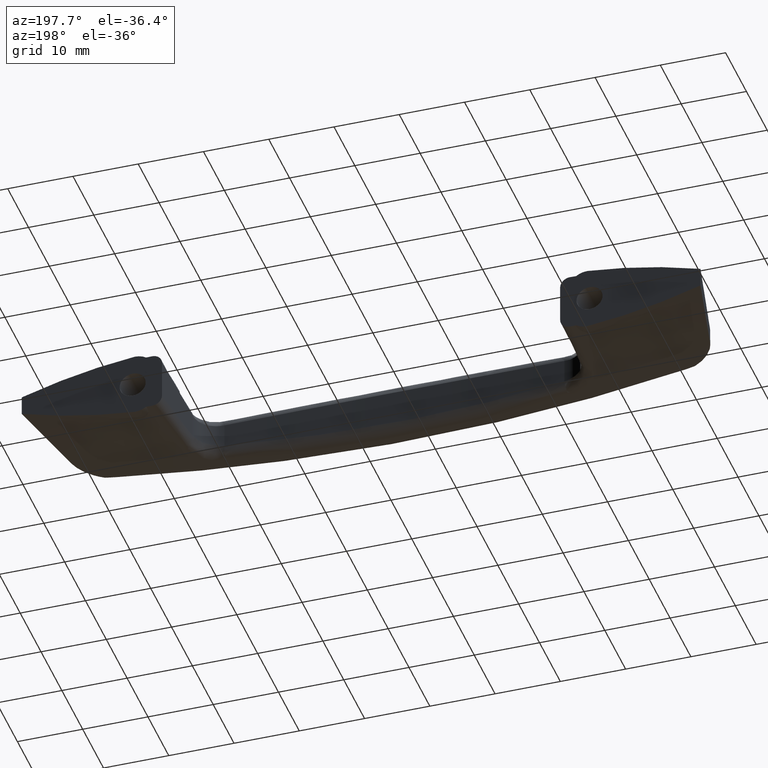
[diagram: clean part render]
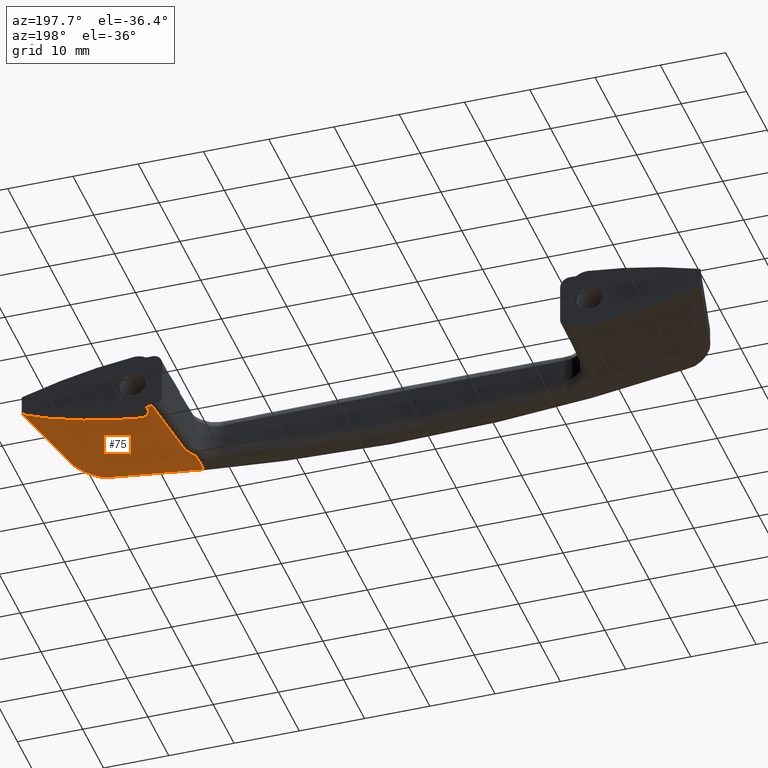
[diagram: same view with one face highlighted and labeled with its STEP entity id]
A machine part, auxiliary view. The second image highlights one B-rep face of the part: STEP entity #75.
In plain terms, the highlighted face is a freeform B-spline surface patch.
Its self-contained STEP definition (entity closure, byte-faithful):
#75=ADVANCED_FACE('',(#437),#436,.F.);
#436=( BOUNDED_SURFACE() B_SPLINE_SURFACE( 3,3,((#1904,#1905,#1906,#1907,#1908),(#1909,#1910,#1911,#1912,#1913),(#1914,#1915,#1916,#1917,#1918),(#1919,#1920,#1921,#1922,#1923)), .UNSPECIFIED.,.F.,.F.,.F.) B_SPLINE_SURFACE_WITH_KNOTS((4,4),(4,1,4),(0.00000000000E+00,2.18181993172E+01),(0.00000000000E+00,1.75008341648E+01,1.99571666957E+01), .UNSPECIFIED. ) GEOMETRIC_REPRESENTATION_ITEM() RATIONAL_B_SPLINE_SURFACE(((1.00000000000E+00,1.00000000000E+00,1.00000000000E+00,1.00000000000E+00,1.00000000000E+00),(1.00000000000E+00,1.00000000000E+00,1.00000000000E+00,1.00000000000E+00,1.00000000000E+00),(1.00000000000E+00,1.00000000000E+00,1.00000000000E+00,1.00000000000E+00,1.00000000000E+00),(1.00000000000E+00,1.00000000000E+00,1.00000000000E+00,1.00000000000E+00,1.00000000000E+00))) REPRESENTATION_ITEM('') SURFACE() );
#437=FACE_OUTER_BOUND('',#1924,.T.);
#1904=CARTESIAN_POINT('',(8.71246836077E+01,9.64704935650E-02,-1.47346183921E+00));
#1905=CARTESIAN_POINT('',(8.58942736324E+01,-5.60467069131E+00,-1.35470868256E+00));
#1906=CARTESIAN_POINT('',(8.44911701547E+01,-1.21060419997E+01,-1.21931878052E+00));
#1907=CARTESIAN_POINT('',(8.30878863146E+01,-1.85982677269E+01,-1.07772193069E+00));
#1908=CARTESIAN_POINT('',(8.29151681857E+01,-1.93972491206E+01,-1.06023769401E+00));
#1909=CARTESIAN_POINT('',(8.01293110595E+01,9.64704935650E-02,-3.46278577935E+00));
#1910=CARTESIAN_POINT('',(7.91659821824E+01,-5.60467069131E+00,-2.83066458711E+00));
#1911=CARTESIAN_POINT('',(7.80667210307E+01,-1.21060419997E+01,-2.10753036067E+00));
#1912=CARTESIAN_POINT('',(7.71130316768E+01,-1.85982677269E+01,-1.84509476164E+00));
#1913=CARTESIAN_POINT('',(7.69969756496E+01,-1.93972491206E+01,-1.81698511960E+00));
#1914=CARTESIAN_POINT('',(7.28644316249E+01,9.64704935650E-02,-4.48722514796E+00));
#1915=CARTESIAN_POINT('',(7.22807276297E+01,-5.60467069131E+00,-3.70511892999E+00));
#1916=CARTESIAN_POINT('',(7.16142254378E+01,-1.21060419997E+01,-2.81043705535E+00));
#1917=CARTESIAN_POINT('',(7.11230967554E+01,-1.85982677269E+01,-2.47927635363E+00));
#1918=CARTESIAN_POINT('',(7.10642439060E+01,-1.93972491206E+01,-2.44364339057E+00));
#1919=CARTESIAN_POINT('',(6.55920914271E+01,9.64704935650E-02,-4.50988577000E+00));
#1920=CARTESIAN_POINT('',(6.53851464838E+01,-5.60467069131E+00,-3.95755684945E+00));
#1921=CARTESIAN_POINT('',(6.51481116878E+01,-1.21060419997E+01,-3.32628763297E+00));
#1922=CARTESIAN_POINT('',(6.51209765236E+01,-1.85982677269E+01,-2.98011104326E+00));
#1923=CARTESIAN_POINT('',(6.51195461851E+01,-1.93972491206E+01,-2.94009704803E+00));
#1924=EDGE_LOOP('',(#2242,#2243,#2244,#2245,#2246,#2247,#2248,#2249,#2250,#2251,#2252,#2253,#2254));
#2242=ORIENTED_EDGE('',*,*,#2439,.T.);
#2243=ORIENTED_EDGE('',*,*,#2436,.T.);
#2244=ORIENTED_EDGE('',*,*,#2471,.F.);
#2245=ORIENTED_EDGE('',*,*,#2375,.F.);
#2246=ORIENTED_EDGE('',*,*,#2373,.F.);
#2247=ORIENTED_EDGE('',*,*,#2372,.F.);
#2248=ORIENTED_EDGE('',*,*,#2371,.F.);
#2249=ORIENTED_EDGE('',*,*,#2472,.F.);
#2250=ORIENTED_EDGE('',*,*,#2456,.T.);
#2251=ORIENTED_EDGE('',*,*,#2462,.T.);
#2252=ORIENTED_EDGE('',*,*,#2359,.F.);
#2253=ORIENTED_EDGE('',*,*,#2466,.F.);
#2254=ORIENTED_EDGE('',*,*,#2465,.F.);
#2359=EDGE_CURVE('',#2534,#2541,#2542,.T.);
#2371=EDGE_CURVE('',#2616,#2623,#2624,.T.);
#2372=EDGE_CURVE('',#2623,#2630,#2631,.T.);
#2373=EDGE_CURVE('',#2630,#2637,#2638,.T.);
#2375=EDGE_CURVE('',#2637,#2650,#2651,.T.);
#2436=EDGE_CURVE('',#3067,#3060,#3068,.T.);
#2439=EDGE_CURVE('',#3087,#3067,#3088,.T.);
#2456=EDGE_CURVE('',#3202,#3195,#3203,.T.);
#2462=EDGE_CURVE('',#3195,#2541,#3239,.T.);
#2465=EDGE_CURVE('',#3087,#3257,#3258,.T.);
#2466=EDGE_CURVE('',#3257,#2534,#3264,.T.);
#2471=EDGE_CURVE('',#2650,#3060,#3295,.T.);
#2472=EDGE_CURVE('',#3202,#2616,#3301,.T.);
#2534=VERTEX_POINT('',#3497);
#2541=VERTEX_POINT('',#3512);
#2542=(BOUNDED_CURVE() B_SPLINE_CURVE(3,(#3513,#3514,#3515,#3516,#3517,#3518),.UNSPECIFIED.,.F.,.F.) B_SPLINE_CURVE_WITH_KNOTS((4,2,4),(0.00000000000E+00,5.00000000000E-01,1.00000000000E+00),.UNSPECIFIED.) CURVE() GEOMETRIC_REPRESENTATION_ITEM() RATIONAL_B_SPLINE_CURVE((1.00000000000E+00,1.00000000000E+00,1.00000000000E+00,1.00000000000E+00,1.00000000000E+00,1.00000000000E+00)) REPRESENTATION_ITEM('') );
#2616=VERTEX_POINT('',#3649);
#2623=VERTEX_POINT('',#3654);
#2624=CIRCLE('',#3658,8.18314614264E-01);
#2630=VERTEX_POINT('',#3659);
#2631=CIRCLE('',#3663,1.79989205037E+02);
#2637=VERTEX_POINT('',#3664);
#2638=(BOUNDED_CURVE() B_SPLINE_CURVE(3,(#3665,#3666,#3667,#3668,#3669,#3670,#3671,#3672,#3673,#3674,#3675,#3676,#3677,#3678,#3679,#3680,#3681,#3682,#3683,#3684,#3685,#3686,#3687,#3688,#3689,#3690,#3691,#3692),.UNSPECIFIED.,.F.,.F.) B_SPLINE_CURVE_WITH_KNOTS((4,2,2,2,2,2,2,2,2,2,2,2,2,4),(0.00000000000E+00,7.81250000000E-03,1.56250000000E-02,3.12500000000E-02,6.25000000000E-02,9.37500000000E-02,1.25000000000E-01,1.87500000000E-01,2.50000000000E-01,3.75000000000E-01,4.37500000000E-01,5.00000000000E-01,7.50000000000E-01,1.00000000000E+00),.UNSPECIFIED.) CURVE() GEOMETRIC_REPRESENTATION_ITEM() RATIONAL_B_SPLINE_CURVE((1.00000000000E+00,1.00000000000E+00,1.00000000000E+00,1.00000000000E+00,1.00000000000E+00,1.00000000000E+00,1.00000000000E+00,1.00000000000E+00,1.00000000000E+00,1.00000000000E+00,1.00000000000E+00,1.00000000000E+00,1.00000000000E+00,1.00000000000E+00,1.00000000000E+00,1.00000000000E+00,1.00000000000E+00,1.00000000000E+00,1.00000000000E+00,1.00000000000E+00,1.00000000000E+00,1.00000000000E+00,1.00000000000E+00,1.00000000000E+00,1.00000000000E+00,1.00000000000E+00,1.00000000000E+00,1.00000000000E+00)) REPRESENTATION_ITEM('') );
#2650=VERTEX_POINT('',#3697);
#2651=(BOUNDED_CURVE() B_SPLINE_CURVE(3,(#3698,#3699,#3700,#3701,#3702,#3703,#3704,#3705,#3706,#3707,#3708,#3709,#3710,#3711,#3712,#3713,#3714,#3715,#3716,#3717,#3718,#3719,#3720,#3721,#3722,#3723,#3724,#3725,#3726,#3727),.UNSPECIFIED.,.F.,.F.) B_SPLINE_CURVE_WITH_KNOTS((4,2,2,2,2,2,2,2,2,2,2,2,2,2,4),(0.00000000000E+00,1.25000000000E-01,1.56250000000E-01,1.87500000000E-01,2.50000000000E-01,3.12500000000E-01,3.43750000000E-01,3.75000000000E-01,5.00000000000E-01,5.62500000000E-01,6.25000000000E-01,7.50000000000E-01,8.12500000000E-01,8.75000000000E-01,1.00000000000E+00),.UNSPECIFIED.) CURVE() GEOMETRIC_REPRESENTATION_ITEM() RATIONAL_B_SPLINE_CURVE((1.00000000000E+00,1.00000000000E+00,1.00000000000E+00,1.00000000000E+00,1.00000000000E+00,1.00000000000E+00,1.00000000000E+00,1.00000000000E+00,1.00000000000E+00,1.00000000000E+00,1.00000000000E+00,1.00000000000E+00,1.00000000000E+00,1.00000000000E+00,1.00000000000E+00,1.00000000000E+00,1.00000000000E+00,1.00000000000E+00,1.00000000000E+00,1.00000000000E+00,1.00000000000E+00,1.00000000000E+00,1.00000000000E+00,1.00000000000E+00,1.00000000000E+00,1.00000000000E+00,1.00000000000E+00,1.00000000000E+00,1.00000000000E+00,1.00000000000E+00)) REPRESENTATION_ITEM('') );
#3060=VERTEX_POINT('',#4455);
#3067=VERTEX_POINT('',#4465);
#3068=(BOUNDED_CURVE() B_SPLINE_CURVE(3,(#4466,#4467,#4468,#4469,#4470,#4471,#4472,#4473),.UNSPECIFIED.,.F.,.F.) B_SPLINE_CURVE_WITH_KNOTS((4,1,1,1,1,4),(0.00000000000E+00,1.36573409974E-01,3.04815800430E-01,5.04789931598E-01,7.36527382470E-01,1.00000000000E+00),.UNSPECIFIED.) CURVE() GEOMETRIC_REPRESENTATION_ITEM() RATIONAL_B_SPLINE_CURVE((1.00000000000E+00,1.00000000000E+00,1.00000000000E+00,1.00000000000E+00,1.00000000000E+00,1.00000000000E+00,1.00000000000E+00,1.00000000000E+00)) REPRESENTATION_ITEM('') );
#3087=VERTEX_POINT('',#4494);
#3088=(BOUNDED_CURVE() B_SPLINE_CURVE(3,(#4495,#4496,#4497,#4498,#4499,#4500,#4501,#4502,#4503,#4504,#4505,#4506,#4507,#4508),.UNSPECIFIED.,.F.,.F.) B_SPLINE_CURVE_WITH_KNOTS((4,1,1,1,1,1,1,1,1,1,1,4),(0.00000000000E+00,7.12102664259E-02,1.42320651129E-01,2.13455942477E-01,2.84741361103E-01,3.56302031783E-01,4.28262462279E-01,5.00746042472E-01,6.25778628671E-01,7.50223970542E-01,8.74738440728E-01,9.99998987838E-01),.UNSPECIFIED.) CURVE() GEOMETRIC_REPRESENTATION_ITEM() RATIONAL_B_SPLINE_CURVE((1.00000000000E+00,1.00000000000E+00,1.00000000000E+00,1.00000000000E+00,1.00000000000E+00,1.00000000000E+00,1.00000000000E+00,1.00000000000E+00,1.00000000000E+00,1.00000000000E+00,1.00000000000E+00,1.00000000000E+00,1.00000000000E+00,1.00000000000E+00)) REPRESENTATION_ITEM('') );
#3195=VERTEX_POINT('',#4623);
#3202=VERTEX_POINT('',#4627);
#3203=(BOUNDED_CURVE() B_SPLINE_CURVE(3,(#4628,#4629,#4630,#4631),.UNSPECIFIED.,.F.,.F.) B_SPLINE_CURVE_WITH_KNOTS((4,4),(1.24632142714E-01,7.38916784463E-01),.UNSPECIFIED.) CURVE() GEOMETRIC_REPRESENTATION_ITEM() RATIONAL_B_SPLINE_CURVE((1.00000000000E+00,1.00000000000E+00,1.00000000000E+00,1.00000000000E+00)) REPRESENTATION_ITEM('') );
#3239=(BOUNDED_CURVE() B_SPLINE_CURVE(3,(#4693,#4694,#4695,#4696,#4697,#4698,#4699,#4700,#4701,#4702,#4703,#4704,#4705,#4706,#4707,#4708,#4709,#4710,#4711,#4712,#4713,#4714,#4715,#4716),.UNSPECIFIED.,.F.,.F.) B_SPLINE_CURVE_WITH_KNOTS((4,2,2,2,2,2,2,2,2,2,2,4),(0.00000000000E+00,1.25000000000E-01,2.50000000000E-01,3.12500000000E-01,3.75000000000E-01,5.00000000000E-01,6.25000000000E-01,6.87500000000E-01,7.18750000000E-01,7.50000000000E-01,8.75000000000E-01,1.00000000000E+00),.UNSPECIFIED.) CURVE() GEOMETRIC_REPRESENTATION_ITEM() RATIONAL_B_SPLINE_CURVE((1.00000000000E+00,1.00000000000E+00,1.00000000000E+00,1.00000000000E+00,1.00000000000E+00,1.00000000000E+00,1.00000000000E+00,1.00000000000E+00,1.00000000000E+00,1.00000000000E+00,1.00000000000E+00,1.00000000000E+00,1.00000000000E+00,1.00000000000E+00,1.00000000000E+00,1.00000000000E+00,1.00000000000E+00,1.00000000000E+00,1.00000000000E+00,1.00000000000E+00,1.00000000000E+00,1.00000000000E+00,1.00000000000E+00,1.00000000000E+00)) REPRESENTATION_ITEM('') );
#3257=VERTEX_POINT('',#4759);
#3258=(BOUNDED_CURVE() B_SPLINE_CURVE(3,(#4760,#4761,#4762,#4763),.UNSPECIFIED.,.F.,.F.) B_SPLINE_CURVE_WITH_KNOTS((4,4),(6.69408487735E-01,7.38916784463E-01),.UNSPECIFIED.) CURVE() GEOMETRIC_REPRESENTATION_ITEM() RATIONAL_B_SPLINE_CURVE((1.00000000000E+00,1.00000000000E+00,1.00000000000E+00,1.00000000000E+00)) REPRESENTATION_ITEM('') );
#3264=(BOUNDED_CURVE() B_SPLINE_CURVE(3,(#4764,#4765,#4766,#4767),.UNSPECIFIED.,.F.,.F.) B_SPLINE_CURVE_WITH_KNOTS((4,4),(7.38916784463E-01,8.38186744492E-01),.UNSPECIFIED.) CURVE() GEOMETRIC_REPRESENTATION_ITEM() RATIONAL_B_SPLINE_CURVE((1.00000000000E+00,1.00000000000E+00,1.00000000000E+00,1.00000000000E+00)) REPRESENTATION_ITEM('') );
#3295=CIRCLE('',#4788,8.00697039431E+01);
#3301=CIRCLE('',#4792,8.03413378876E+01);
#3497=CARTESIAN_POINT('',(6.52081757174E+01,-1.92816720495E+01,-2.93850225284E+00));
#3512=CARTESIAN_POINT('',(8.01970423412E+01,-1.87281347887E+01,-1.43240979430E+00));
#3513=CARTESIAN_POINT('',(6.52081757174E+01,-1.92816720495E+01,-2.93850225284E+00));
#3514=CARTESIAN_POINT('',(6.77114812986E+01,-1.92155203213E+01,-2.73228056424E+00));
#3515=CARTESIAN_POINT('',(7.02125297102E+01,-1.91361414425E+01,-2.50373694711E+00));
#3516=CARTESIAN_POINT('',(7.52091687193E+01,-1.89512914685E+01,-2.00188264080E+00));
#3517=CARTESIAN_POINT('',(7.77047972339E+01,-1.88457675945E+01,-1.72860019424E+00));
#3518=CARTESIAN_POINT('',(8.01970423412E+01,-1.87281347887E+01,-1.43240979430E+00));
#3649=CARTESIAN_POINT('',(8.65526045174E+01,-1.99051200000E-16,-1.62542994728E+00));
#3654=CARTESIAN_POINT('',(8.65773206453E+01,-1.17217855448E-02,-1.61760096421E+00));
#3655=CARTESIAN_POINT('',(8.62217508498E+01,-7.48068999134E-01,-1.64925075918E+00));
#3656=DIRECTION('',(2.63561663199E-01,-8.59723040487E-02,-9.60803836706E-01));
#3657=DIRECTION('',(-4.04311082615E-01,-9.14158180845E-01,-2.91096009850E-02));
#3658=AXIS2_PLACEMENT_3D('',#3655,#3656,#3657);
#3659=CARTESIAN_POINT('',(8.65773206453E+01,-2.63105502050E-01,-1.59610330946E+00));
#3660=CARTESIAN_POINT('',(-1.17991677919E+01,-1.29801715976E+01,-1.51784174349E+02));
#3661=DIRECTION('',(8.37414098071E-01,-4.65705455353E-02,-5.44581318667E-01));
#3662=DIRECTION('',(-5.46568825708E-01,-7.20512644599E-02,-8.34308776206E-01));
#3663=AXIS2_PLACEMENT_3D('',#3660,#3661,#3662);
#3664=CARTESIAN_POINT('',(6.96578169925E+01,-2.94902598345E+00,-4.03772774715E+00));
#3665=CARTESIAN_POINT('',(8.65773206453E+01,-2.63105502050E-01,-1.59610330946E+00));
#3666=CARTESIAN_POINT('',(8.65378593565E+01,-2.85625357590E-01,-1.60499777118E+00));
#3667=CARTESIAN_POINT('',(8.64973662478E+01,-3.04324742177E-01,-1.61444998913E+00));
#3668=CARTESIAN_POINT('',(8.64156470156E+01,-3.39060849721E-01,-1.63368426690E+00));
#3669=CARTESIAN_POINT('',(8.63743675321E+01,-3.54897869199E-01,-1.64349792061E+00));
#3670=CARTESIAN_POINT('',(8.62498404320E+01,-3.99950841152E-01,-1.67319271636E+00));
#3671=CARTESIAN_POINT('',(8.61659125530E+01,-4.26740023014E-01,-1.69332282318E+00));
#3672=CARTESIAN_POINT('',(8.59128847268E+01,-5.02918391351E-01,-1.75384665053E+00));
#3673=CARTESIAN_POINT('',(8.57425182091E+01,-5.48034399432E-01,-1.79438743605E+00));
#3674=CARTESIAN_POINT('',(8.54003935402E+01,-6.34273306591E-01,-1.87472447584E+00));
#3675=CARTESIAN_POINT('',(8.52285044044E+01,-6.75128660891E-01,-1.91457737439E+00));
#3676=CARTESIAN_POINT('',(8.48840849851E+01,-7.54337143040E-01,-1.99324118617E+00));
#3677=CARTESIAN_POINT('',(8.47115371059E+01,-7.92646526676E-01,-2.03206113249E+00));
#3678=CARTESIAN_POINT('',(8.41931082924E+01,-9.05053885656E-01,-2.14684639681E+00));
#3679=CARTESIAN_POINT('',(8.38464509365E+01,-9.76684217399E-01,-2.22113075608E+00));
#3680=CARTESIAN_POINT('',(8.31515334660E+01,-1.11603148597E+00,-2.36504841159E+00));
#3681=CARTESIAN_POINT('',(8.28032608994E+01,-1.18367240080E+00,-2.43469121206E+00));
#3682=CARTESIAN_POINT('',(8.17562594201E+01,-1.38179992474E+00,-2.63674539976E+00));
#3683=CARTESIAN_POINT('',(8.10553547757E+01,-1.50753555479E+00,-2.76228132469E+00));
#3684=CARTESIAN_POINT('',(7.99999666427E+01,-1.68759343364E+00,-2.93758934488E+00));
#3685=CARTESIAN_POINT('',(7.96474937015E+01,-1.74615889055E+00,-2.99386204801E+00));
#3686=CARTESIAN_POINT('',(7.89412121497E+01,-1.86034189562E+00,-3.10221797029E+00));
#3687=CARTESIAN_POINT('',(7.85873173252E+01,-1.91597088799E+00,-3.15431294762E+00));
#3688=CARTESIAN_POINT('',(7.68161239304E+01,-2.18629240667E+00,-3.40442375961E+00));
#3689=CARTESIAN_POINT('',(7.53929982973E+01,-2.37758897377E+00,-3.57163284801E+00));
#3690=CARTESIAN_POINT('',(7.25345516928E+01,-2.70515904591E+00,-3.84772097484E+00));
#3691=CARTESIAN_POINT('',(7.10992237723E+01,-2.84134937172E+00,-3.95662728698E+00));
#3692=CARTESIAN_POINT('',(6.96578169925E+01,-2.94902598345E+00,-4.03772774715E+00));
#3697=CARTESIAN_POINT('',(6.79374437056E+01,0.00000000000E+00,-4.45736725161E+00));
#3698=CARTESIAN_POINT('',(6.96578169925E+01,-2.94902598345E+00,-4.03772774715E+00));
#3699=CARTESIAN_POINT('',(6.94979929841E+01,-2.93207442994E+00,-4.05007962103E+00));
#3700=CARTESIAN_POINT('',(6.93458544616E+01,-2.89110056948E+00,-4.06428808862E+00));
#3701=CARTESIAN_POINT('',(6.91641548340E+01,-2.81337975716E+00,-4.08403784098E+00));
#3702=CARTESIAN_POINT('',(6.91282462056E+01,-2.79648672590E+00,-4.08808949441E+00));
#3703=CARTESIAN_POINT('',(6.90572910615E+01,-2.76000444782E+00,-4.09639614344E+00));
#3704=CARTESIAN_POINT('',(6.90223319456E+01,-2.74044584377E+00,-4.10064229631E+00));
#3705=CARTESIAN_POINT('',(6.89203845327E+01,-2.67879765996E+00,-4.11347279263E+00));
#3706=CARTESIAN_POINT('',(6.88557470232E+01,-2.63346578316E+00,-4.12221407772E+00));
#3707=CARTESIAN_POINT('',(6.87325454741E+01,-2.53507743681E+00,-4.14004971027E+00));
#3708=CARTESIAN_POINT('',(6.86739849314E+01,-2.48201652281E+00,-4.14914427876E+00));
#3709=CARTESIAN_POINT('',(6.85904794032E+01,-2.39691363216E+00,-4.16305096599E+00));
#3710=CARTESIAN_POINT('',(6.85633229637E+01,-2.36756335656E+00,-4.16773993865E+00));
#3711=CARTESIAN_POINT('',(6.85110592985E+01,-2.30778803944E+00,-4.17709371060E+00));
#3712=CARTESIAN_POINT('',(6.84858713724E+01,-2.27728718992E+00,-4.18177130911E+00));
#3713=CARTESIAN_POINT('',(6.83643824534E+01,-2.12189261168E+00,-4.20516960788E+00));
#3714=CARTESIAN_POINT('',(6.82812764426E+01,-1.98842992399E+00,-4.22392069945E+00));
#3715=CARTESIAN_POINT('',(6.81748278864E+01,-1.77642984451E+00,-4.25222976072E+00));
#3716=CARTESIAN_POINT('',(6.81423154392E+01,-1.70347386706E+00,-4.26173378765E+00));
#3717=CARTESIAN_POINT('',(6.80841862377E+01,-1.55634408370E+00,-4.28049644050E+00));
#3718=CARTESIAN_POINT('',(6.80584244660E+01,-1.48194243038E+00,-4.28978719850E+00));
#3719=CARTESIAN_POINT('',(6.79902428449E+01,-1.25643549052E+00,-4.31744652581E+00));
#3720=CARTESIAN_POINT('',(6.79568404010E+01,-1.10305011566E+00,-4.33560476938E+00));
#3721=CARTESIAN_POINT('',(6.79234732309E+01,-8.68756477738E-01,-4.36258742030E+00));
#3722=CARTESIAN_POINT('',(6.79151498309E+01,-7.89719992070E-01,-4.37156414107E+00));
#3723=CARTESIAN_POINT('',(6.79042422549E+01,-6.31360708697E-01,-4.38932423367E+00));
#3724=CARTESIAN_POINT('',(6.79016536844E+01,-5.52257556436E-01,-4.39808379567E+00));
#3725=CARTESIAN_POINT('',(6.79023296933E+01,-3.15176425312E-01,-4.42403484095E+00));
#3726=CARTESIAN_POINT('',(6.79139371177E+01,-1.57424242600E-01,-4.44090385543E+00));
#3727=CARTESIAN_POINT('',(6.79374437056E+01,0.00000000000E+00,-4.45736725161E+00));
#4455=CARTESIAN_POINT('',(6.70461265372E+01,1.10435800000E-17,-4.48179204795E+00));
#4465=CARTESIAN_POINT('',(6.63254787873E+01,-1.24683387398E+01,-3.29373326936E+00));
#4466=CARTESIAN_POINT('',(6.63254787873E+01,-1.24683387398E+01,-3.29373326936E+00));
#4467=CARTESIAN_POINT('',(6.63583914444E+01,-1.18999588180E+01,-3.33920307416E+00));
#4468=CARTESIAN_POINT('',(6.64318486271E+01,-1.06314016307E+01,-3.44068633467E+00));
#4469=CARTESIAN_POINT('',(6.65501336973E+01,-8.53194908767E+00,-3.62718127585E+00));
#4470=CARTESIAN_POINT('',(6.66933167150E+01,-6.03823405273E+00,-3.86370154262E+00));
#4471=CARTESIAN_POINT('',(6.68620007606E+01,-3.15043663490E+00,-4.15401047896E+00));
#4472=CARTESIAN_POINT('',(6.69821839942E+01,-1.09407239937E+00,-4.36796123362E+00));
#4473=CARTESIAN_POINT('',(6.70461265372E+01,1.10435800000E-17,-4.48179204795E+00));
#4494=CARTESIAN_POINT('',(6.52403883870E+01,-1.54019056817E+01,-3.16067440891E+00));
#4495=CARTESIAN_POINT('',(6.52403883870E+01,-1.54019056817E+01,-3.16067440891E+00));
#4496=CARTESIAN_POINT('',(6.52852080793E+01,-1.53412689761E+01,-3.16115906401E+00));
#4497=CARTESIAN_POINT('',(6.53747845985E+01,-1.52200806160E+01,-3.16212769441E+00));
#4498=CARTESIAN_POINT('',(6.54992552819E+01,-1.50313515938E+01,-3.16509875246E+00));
#4499=CARTESIAN_POINT('',(6.56161985681E+01,-1.48378547319E+01,-3.16920573911E+00));
#4500=CARTESIAN_POINT('',(6.57248965790E+01,-1.46390707213E+01,-3.17457472077E+00));
#4501=CARTESIAN_POINT('',(6.58254980177E+01,-1.44351417229E+01,-3.18119480316E+00));
#4502=CARTESIAN_POINT('',(6.59179231605E+01,-1.42260276642E+01,-3.18908993211E+00));
#4503=CARTESIAN_POINT('',(6.60222079079E+01,-1.39606387572E+01,-3.20046512562E+00));
#4504=CARTESIAN_POINT('',(6.61290412604E+01,-1.36369686050E+01,-3.21647838220E+00));
#4505=CARTESIAN_POINT('',(6.62247040701E+01,-1.32530988091E+01,-3.23869668667E+00));
#4506=CARTESIAN_POINT('',(6.62936762247E+01,-1.28632064387E+01,-3.26416262782E+00));
#4507=CARTESIAN_POINT('',(6.63148568779E+01,-1.26002231531E+01,-3.28385677641E+00));
#4508=CARTESIAN_POINT('',(6.63254787873E+01,-1.24683387398E+01,-3.29373326936E+00));
#4623=CARTESIAN_POINT('',(8.39594099848E+01,-1.41344185006E+01,-1.18779309927E+00));
#4627=CARTESIAN_POINT('',(8.70000000056E+01,-9.23879100000E-10,-1.50072784168E+00));
#4628=CARTESIAN_POINT('',(8.70000000056E+01,-9.23879100000E-10,-1.50072784168E+00));
#4629=CARTESIAN_POINT('',(8.59861835156E+01,-4.71280457314E+00,-1.39631809893E+00));
#4630=CARTESIAN_POINT('',(8.49723670255E+01,-9.42560914536E+00,-1.29190835618E+00));
#4631=CARTESIAN_POINT('',(8.39594099848E+01,-1.41344185006E+01,-1.18779309927E+00));
#4693=CARTESIAN_POINT('',(8.39594099848E+01,-1.41344185006E+01,-1.18779309927E+00));
#4694=CARTESIAN_POINT('',(8.39047796257E+01,-1.43883723408E+01,-1.18217536554E+00));
#4695=CARTESIAN_POINT('',(8.38355350719E+01,-1.46364966034E+01,-1.17898496493E+00));
#4696=CARTESIAN_POINT('',(8.36689299174E+01,-1.51215306352E+01,-1.17689991164E+00));
#4697=CARTESIAN_POINT('',(8.35715657925E+01,-1.53584389958E+01,-1.17800692928E+00));
#4698=CARTESIAN_POINT('',(8.34043483420E+01,-1.57053575744E+01,-1.18270389234E+00));
#4699=CARTESIAN_POINT('',(8.33450715475E+01,-1.58195861416E+01,-1.18477786114E+00));
#4700=CARTESIAN_POINT('',(8.32193157907E+01,-1.60451708122E+01,-1.18993741128E+00));
#4701=CARTESIAN_POINT('',(8.31525906964E+01,-1.61568930688E+01,-1.19303648722E+00));
#4702=CARTESIAN_POINT('',(8.29436383054E+01,-1.64840793125E+01,-1.20374451127E+00));
#4703=CARTESIAN_POINT('',(8.27926153391E+01,-1.66919435426E+01,-1.21274719408E+00));
#4704=CARTESIAN_POINT('',(8.24678774528E+01,-1.70878133016E+01,-1.23429454170E+00));
#4705=CARTESIAN_POINT('',(8.22941607483E+01,-1.72758170873E+01,-1.24684252018E+00));
#4706=CARTESIAN_POINT('',(8.20163979687E+01,-1.75427822641E+01,-1.26832705281E+00));
#4707=CARTESIAN_POINT('',(8.19209383996E+01,-1.76292574633E+01,-1.27593356907E+00));
#4708=CARTESIAN_POINT('',(8.17733504152E+01,-1.77551212961E+01,-1.28802215581E+00));
#4709=CARTESIAN_POINT('',(8.17233467944E+01,-1.77964906472E+01,-1.29217122830E+00));
#4710=CARTESIAN_POINT('',(8.16224779616E+01,-1.78774342628E+01,-1.30064548215E+00));
#4711=CARTESIAN_POINT('',(8.15715619965E+01,-1.79170555308E+01,-1.30497466515E+00));
#4712=CARTESIAN_POINT('',(8.13146058052E+01,-1.81109648046E+01,-1.32707355508E+00));
#4713=CARTESIAN_POINT('',(8.11014619071E+01,-1.82527064342E+01,-1.34619785108E+00));
#4714=CARTESIAN_POINT('',(8.06603973494E+01,-1.85100978823E+01,-1.38722319525E+00));
#4715=CARTESIAN_POINT('',(8.04324762220E+01,-1.86257468630E+01,-1.40912440165E+00));
#4716=CARTESIAN_POINT('',(8.01970423412E+01,-1.87281347887E+01,-1.43240979430E+00));
#4759=CARTESIAN_POINT('',(6.52216629403E+01,-1.70000000000E+01,-3.06219219357E+00));
#4760=CARTESIAN_POINT('',(6.52403883870E+01,-1.54019056817E+01,-3.16067440891E+00));
#4761=CARTESIAN_POINT('',(6.52328261590E+01,-1.59346614691E+01,-3.12602357420E+00));
#4762=CARTESIAN_POINT('',(6.52265401705E+01,-1.64673615049E+01,-3.09313516826E+00));
#4763=CARTESIAN_POINT('',(6.52216629403E+01,-1.70000000000E+01,-3.06219219357E+00));
#4764=CARTESIAN_POINT('',(6.52216629403E+01,-1.70000000000E+01,-3.06219219357E+00));
#4765=CARTESIAN_POINT('',(6.52146579428E+01,-1.77606669486E+01,-3.01749683529E+00));
#4766=CARTESIAN_POINT('',(6.52105263849E+01,-1.85212083917E+01,-2.97676980557E+00));
#4767=CARTESIAN_POINT('',(6.52081757174E+01,-1.92816720495E+01,-2.93850225284E+00));
#4785=CARTESIAN_POINT('',(6.52984895112E+01,5.59762183755E-18,7.55688372710E+01));
#4786=DIRECTION('',(1.23809086396E-17,1.00000000000E+00,3.38327040604E-19));
#4787=DIRECTION('',(-3.29582109637E-02,6.99093609929E-20,9.99456730594E-01));
#4788=AXIS2_PLACEMENT_3D('',#4785,#4786,#4787);
#4789=CARTESIAN_POINT('',(6.52051903326E+01,-4.66950039809E-10,7.58279010410E+01));
#4790=DIRECTION('',(1.91613390141E-09,1.00000000000E+00,5.34146864179E-10));
#4791=DIRECTION('',(-2.71277654145E-01,5.68734691512E-12,9.62501134733E-01));
#4792=AXIS2_PLACEMENT_3D('',#4789,#4790,#4791);